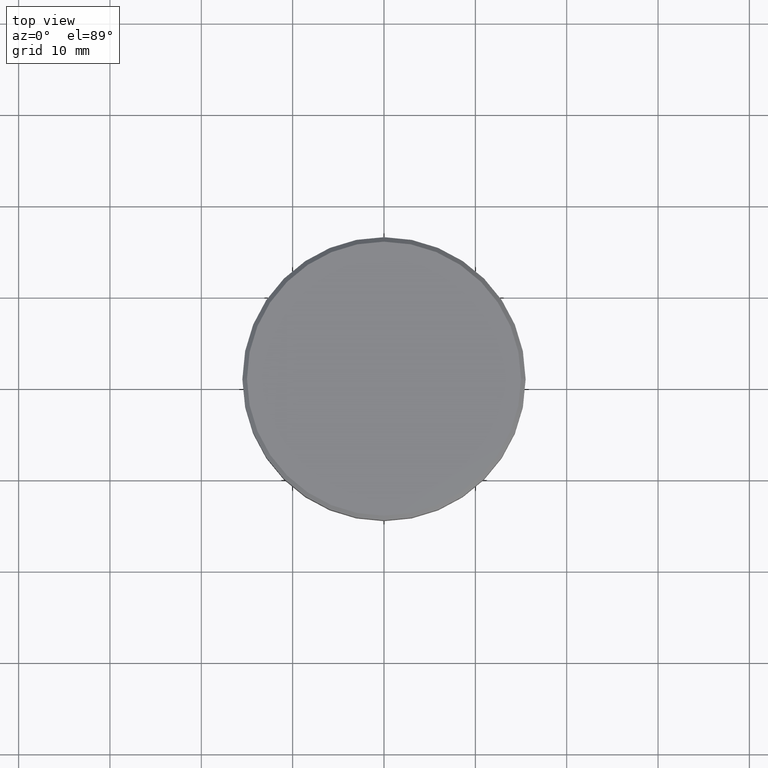
[diagram: clean part render]
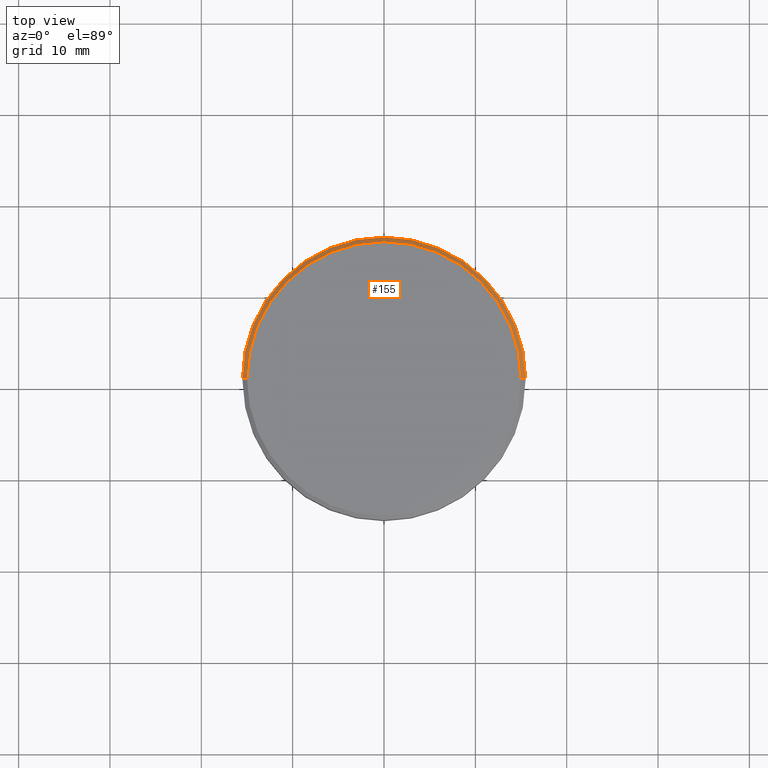
[diagram: same view with one face highlighted and labeled with its STEP entity id]
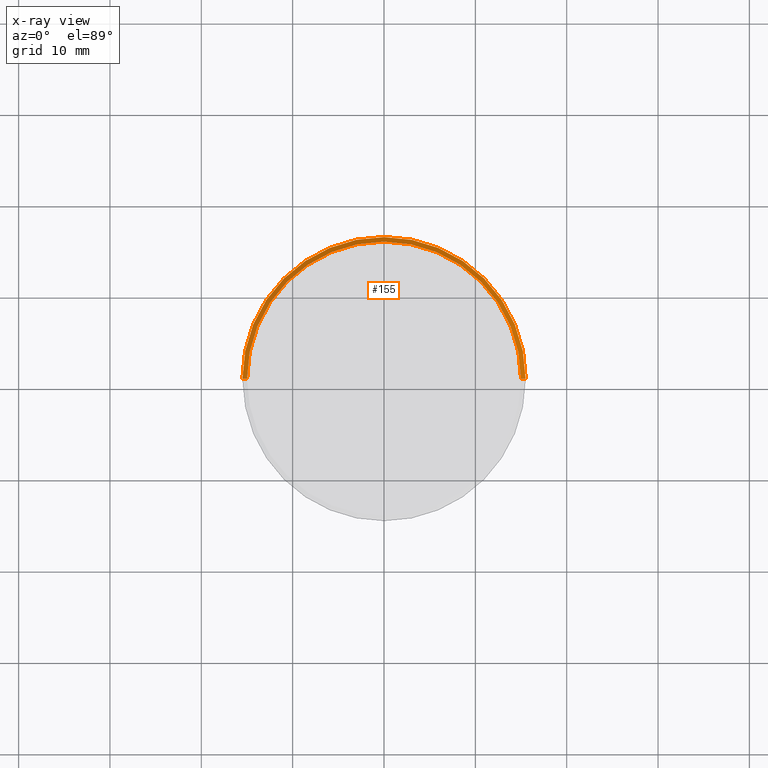
[diagram: x-ray of the same camera — body ghosted, the highlighted face saturated]
A machine part, top view. The second image highlights one B-rep face of the part: STEP entity #155.
The next image is the same camera in x-ray: the body ghosted, the highlighted face saturated — about 0% of this face is hidden behind the body in this view.
In plain terms, the highlighted conical surface has half-angle 45 deg.
Its self-contained STEP definition (entity closure, byte-faithful):
#13 = ORIENTED_EDGE ( 'NONE', *, *, #929, .F. ) ;
#71 = VECTOR ( 'NONE', #806, 1000.000000000000000 ) ;
#75 = ORIENTED_EDGE ( 'NONE', *, *, #773, .F. ) ;
#80 = DIRECTION ( 'NONE',  ( -1.000000000000000000, 0.000000000000000000, 0.000000000000000000 ) ) ;
#140 = VERTEX_POINT ( 'NONE', #244 ) ;
#155 = ADVANCED_FACE ( 'NONE', ( #1168 ), #829, .T. ) ;
#157 = ORIENTED_EDGE ( 'NONE', *, *, #837, .F. ) ;
#214 = EDGE_CURVE ( 'NONE', #320, #1161, #907, .T. ) ;
#244 = CARTESIAN_POINT ( 'NONE',  ( -15.50000000000000000, 1.898202538678397557E-15, -0.5000000000000057732 ) ) ;
#268 = CARTESIAN_POINT ( 'NONE',  ( 0.000000000000000000, 0.000000000000000000, -0.5000000000000057732 ) ) ;
#293 = CARTESIAN_POINT ( 'NONE',  ( -14.99999999999999289, 0.000000000000000000, 0.000000000000000000 ) ) ;
#303 = DIRECTION ( 'NONE',  ( -0.000000000000000000, -0.000000000000000000, 1.000000000000000000 ) ) ;
#320 = VERTEX_POINT ( 'NONE', #550 ) ;
#355 = CARTESIAN_POINT ( 'NONE',  ( 14.99999999999999289, 1.836970198721028800E-15, 0.000000000000000000 ) ) ;
#358 = DIRECTION ( 'NONE',  ( 0.000000000000000000, 0.000000000000000000, -1.000000000000000000 ) ) ;
#361 = DIRECTION ( 'NONE',  ( 0.000000000000000000, 0.000000000000000000, -1.000000000000000000 ) ) ;
#365 = DIRECTION ( 'NONE',  ( 1.000000000000000000, 0.000000000000000000, 0.000000000000000000 ) ) ;
#405 = DIRECTION ( 'NONE',  ( 1.000000000000000000, 0.000000000000000000, 0.000000000000000000 ) ) ;
#414 = ORIENTED_EDGE ( 'NONE', *, *, #214, .T. ) ;
#546 = CIRCLE ( 'NONE', #912, 15.50000000000000000 ) ;
#550 = CARTESIAN_POINT ( 'NONE',  ( 14.99999999999999289, 1.867586368699713376E-15, 0.000000000000000000 ) ) ;
#578 = CARTESIAN_POINT ( 'NONE',  ( 0.000000000000000000, 0.000000000000000000, 0.000000000000000000 ) ) ;
#598 = CIRCLE ( 'NONE', #1156, 14.99999999999999289 ) ;
#773 = EDGE_CURVE ( 'NONE', #939, #140, #1008, .T. ) ;
#806 = DIRECTION ( 'NONE',  ( 0.7071067811865487940, 8.659560562354948882E-17, -0.7071067811865463515 ) ) ;
#829 = CONICAL_SURFACE ( 'NONE', #1054, 14.99999999999999289, 0.7853981633974500554 ) ;
#837 = EDGE_CURVE ( 'NONE', #140, #1161, #546, .T. ) ;
#853 = VECTOR ( 'NONE', #1021, 1000.000000000000000 ) ;
#907 = LINE ( 'NONE', #355, #71 ) ;
#912 = AXIS2_PLACEMENT_3D ( 'NONE', #268, #358, #365 ) ;
#929 = EDGE_CURVE ( 'NONE', #320, #939, #598, .T. ) ;
#939 = VERTEX_POINT ( 'NONE', #949 ) ;
#949 = CARTESIAN_POINT ( 'NONE',  ( -14.99999999999999289, 0.000000000000000000, 0.000000000000000000 ) ) ;
#1008 = LINE ( 'NONE', #293, #853 ) ;
#1021 = DIRECTION ( 'NONE',  ( -0.7071067811865487940, 0.000000000000000000, -0.7071067811865463515 ) ) ;
#1054 = AXIS2_PLACEMENT_3D ( 'NONE', #1081, #361, #80 ) ;
#1081 = CARTESIAN_POINT ( 'NONE',  ( 0.000000000000000000, 0.000000000000000000, 0.000000000000000000 ) ) ;
#1090 = EDGE_LOOP ( 'NONE', ( #13, #414, #157, #75 ) ) ;
#1156 = AXIS2_PLACEMENT_3D ( 'NONE', #578, #303, #405 ) ;
#1161 = VERTEX_POINT ( 'NONE', #1169 ) ;
#1168 = FACE_OUTER_BOUND ( 'NONE', #1090, .T. ) ;
#1169 = CARTESIAN_POINT ( 'NONE',  ( 15.50000000000000000, 0.000000000000000000, -0.5000000000000057732 ) ) ;